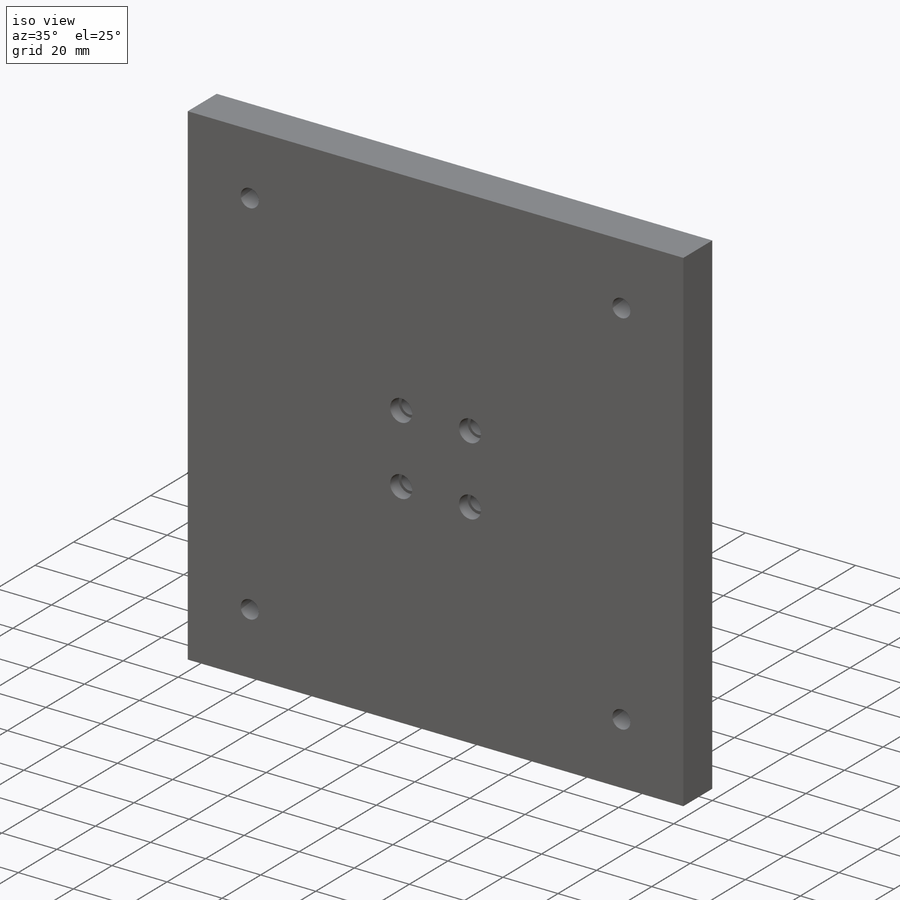
[diagram: iso view]
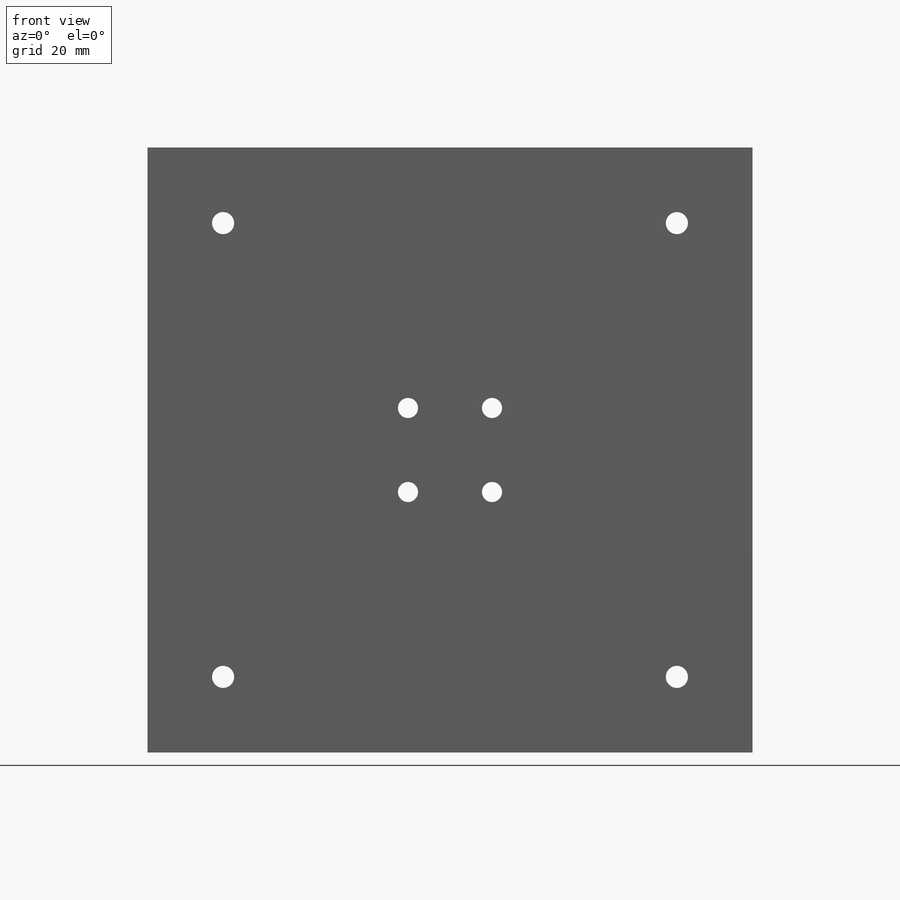
[diagram: front view]
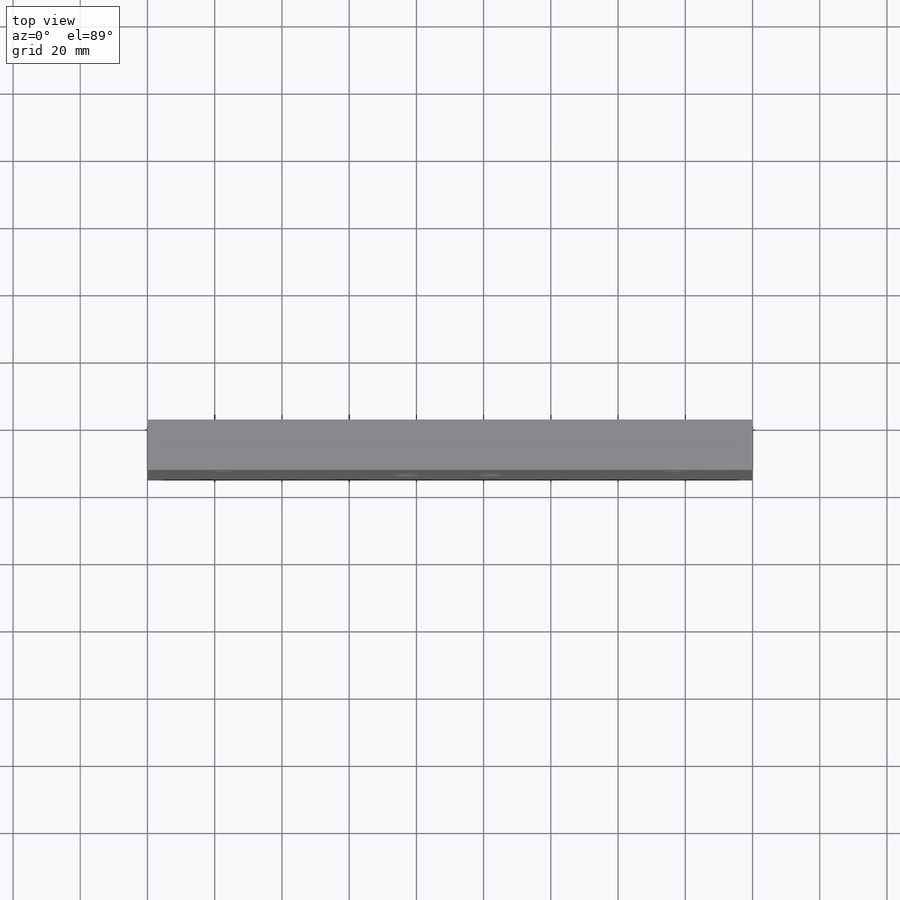
[diagram: top view]
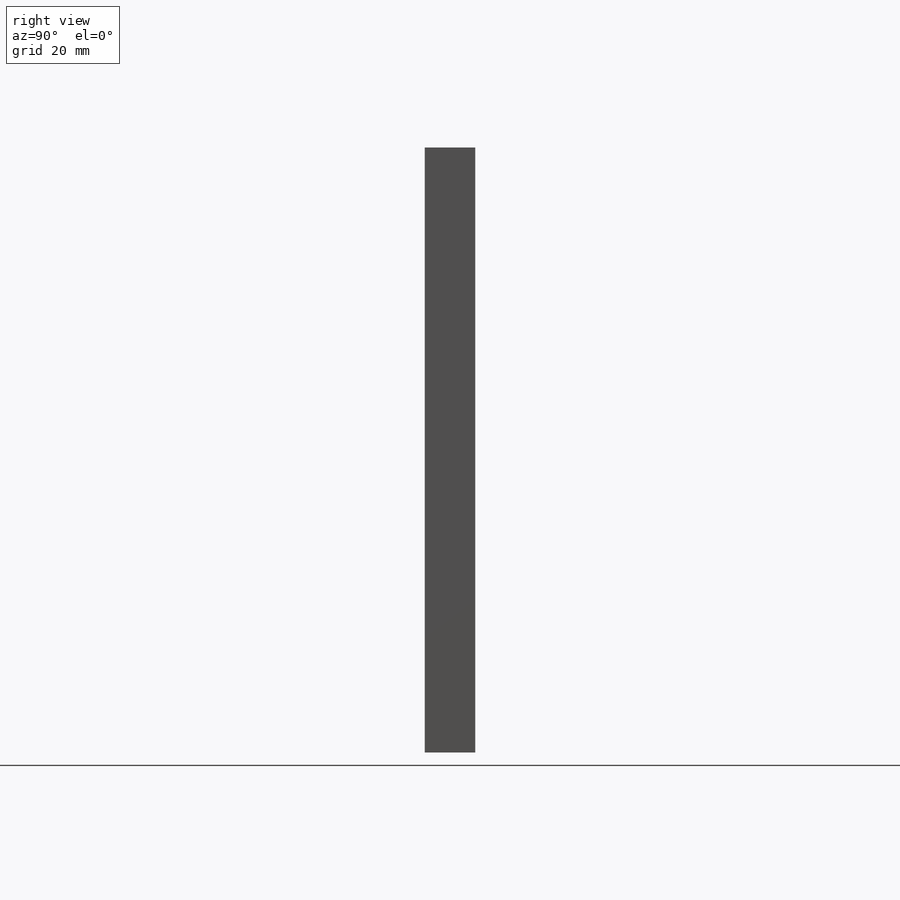
[diagram: right view]
SOLIDWORKS PART (.sldprt)
format: sldprt  version: not decoded by parser v0  size: 483,328 bytes
history: native  units: mm
features: sketch x6, plane x3, hole x2, material x1, extrude x1, cut_extrude x1 (+10 scaffold rows collapsed)
feature tree (24):
  scaffold x10  (default folders/planes/origin — collapsed)
  material  "Verre"
  plane  "Plan de face"
  plane  "Plan de dessus"
  plane  "Plan de droite"
  sketch  "Esquisse1"  dims[c1.D3=~9.329392mm c1.D1=180.0mm c1.D2=180.0mm c1.D5=135.0mm c2.D3=2.0 c2.D4=2.0]
  extrude  "Boss.-Extru.1"  Depth=15mm
  sketch  "Esquisse6"  dims[c1.D1=~5.744091mm c1.D3=25.0mm c1.D4=25.0mm c2.D1=2.0 c2.D2=2.0]
  cut_extrude  "Enlèv. mat.-Extru.1"  [1 undecoded]
  hole  "Chambrage pour vis à tête hexagonale M41"  Diameter=4.5mm Depth=15mm
  sketch  "Esquisse10"
  sketch  "Esquisse9"  dims[hole-wizard template sketch: 42 standard entries collapsed; hole parameters kept: c12.Profondeur du perçage jusqu'au prochain=15.0mm c12.Diamètre du chambrage=8.0mm c12.Profondeur du chambrage=4.4mm]
  hole  "Chambrage pour vis à tête hexagonale M62"  Diameter=6.6mm Depth=15mm
  sketch  "Esquisse12"
  sketch  "Esquisse11"  dims[hole-wizard template sketch: 41 standard entries collapsed; hole parameters kept: c12.Diamètre du perçage jusqu'au prochain=6.6mm c12.Profondeur du perçage jusqu'au prochain=15.0mm c12.Diamètre du chambrage=11.0mm c12.Profondeur du chambrage=6.4mm]
decode coverage: 7 of 10 modeling features carry decoded parameters
note: ~ marks probable driven/reference dimensions
note: 1 parameter value undecoded
note: suppression state not decoded; provenance and decode notes live in map.json
